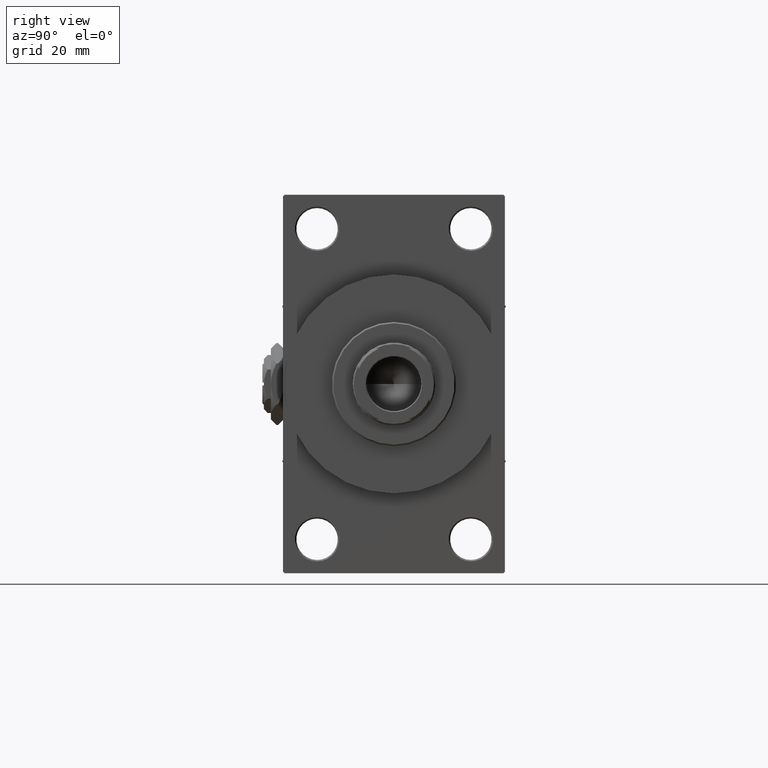
[diagram: clean part render]
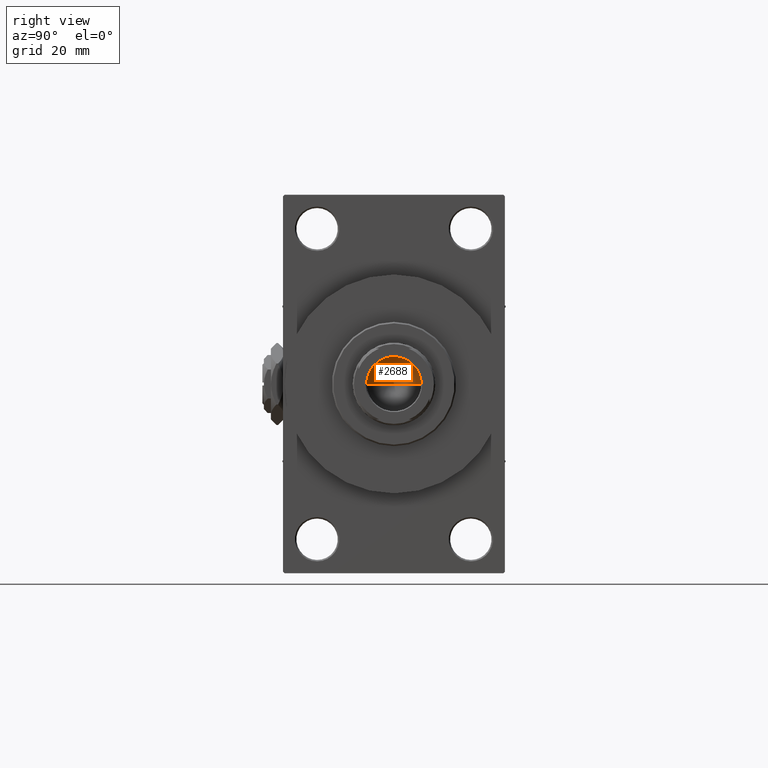
[diagram: same view with one face highlighted and labeled with its STEP entity id]
A machine part, right view. The second image highlights one B-rep face of the part: STEP entity #2688.
In plain terms, the highlighted conical surface has half-angle 59 deg.
Its self-contained STEP definition (entity closure, byte-faithful):
#1240 = LINE ( 'NONE', #8970, #3838 ) ;
#2688 = ADVANCED_FACE ( 'NONE', ( #13706 ), #29716, .F. ) ;
#3087 = VERTEX_POINT ( 'NONE', #5440 ) ;
#3838 = VECTOR ( 'NONE', #12459, 1000.000000000000000 ) ;
#4311 = EDGE_LOOP ( 'NONE', ( #23124, #34286, #33228 ) ) ;
#5440 = CARTESIAN_POINT ( 'NONE',  ( 9.249999999999992895, 0.000000000000000000, 107.0000000000000142 ) ) ;
#5743 = DIRECTION ( 'NONE',  ( 1.000000000000000000, 0.000000000000000000, 0.000000000000000000 ) ) ;
#6825 = VECTOR ( 'NONE', #44901, 1000.000000000000000 ) ;
#7994 = EDGE_CURVE ( 'NONE', #18716, #3087, #40914, .T. ) ;
#8970 = CARTESIAN_POINT ( 'NONE',  ( -9.249999999999992895, 1.132798289211300712E-15, 107.0000000000000142 ) ) ;
#9188 = CARTESIAN_POINT ( 'NONE',  ( 0.000000000000000000, 0.000000000000000000, 107.0000000000000142 ) ) ;
#9974 = DIRECTION ( 'NONE',  ( -0.000000000000000000, -0.000000000000000000, 1.000000000000000000 ) ) ;
#12459 = DIRECTION ( 'NONE',  ( -0.8571673007021117785, 1.049727191138617956E-16, 0.5150380749100550437 ) ) ;
#13706 = FACE_OUTER_BOUND ( 'NONE', #4311, .T. ) ;
#16251 = EDGE_CURVE ( 'NONE', #18716, #19652, #1240, .T. ) ;
#18716 = VERTEX_POINT ( 'NONE', #46137 ) ;
#19652 = VERTEX_POINT ( 'NONE', #21184 ) ;
#21184 = CARTESIAN_POINT ( 'NONE',  ( -9.249999999999992895, 1.132798289211300712E-15, 107.0000000000000142 ) ) ;
#21975 = CARTESIAN_POINT ( 'NONE',  ( 9.249999999999992895, 0.000000000000000000, 107.0000000000000142 ) ) ;
#23124 = ORIENTED_EDGE ( 'NONE', *, *, #7994, .F. ) ;
#28651 = CARTESIAN_POINT ( 'NONE',  ( 0.000000000000000000, 0.000000000000000000, 107.0000000000000142 ) ) ;
#29716 = CONICAL_SURFACE ( 'NONE', #33699, 9.249999999999992895, 1.029744258676653423 ) ;
#33228 = ORIENTED_EDGE ( 'NONE', *, *, #42366, .T. ) ;
#33699 = AXIS2_PLACEMENT_3D ( 'NONE', #28651, #9974, #5743 ) ;
#34286 = ORIENTED_EDGE ( 'NONE', *, *, #16251, .T. ) ;
#40434 = CIRCLE ( 'NONE', #42835, 9.249999999999992895 ) ;
#40914 = LINE ( 'NONE', #21975, #6825 ) ;
#42366 = EDGE_CURVE ( 'NONE', #19652, #3087, #40434, .T. ) ;
#42835 = AXIS2_PLACEMENT_3D ( 'NONE', #9188, #47557, #43339 ) ;
#43339 = DIRECTION ( 'NONE',  ( 1.000000000000000000, 0.000000000000000000, 0.000000000000000000 ) ) ;
#44901 = DIRECTION ( 'NONE',  ( 0.8571673007021117785, 0.000000000000000000, 0.5150380749100550437 ) ) ;
#46137 = CARTESIAN_POINT ( 'NONE',  ( -9.769621978240258809E-15, 0.000000000000000000, 101.4420392739950785 ) ) ;
#47557 = DIRECTION ( 'NONE',  ( -0.000000000000000000, -0.000000000000000000, 1.000000000000000000 ) ) ;